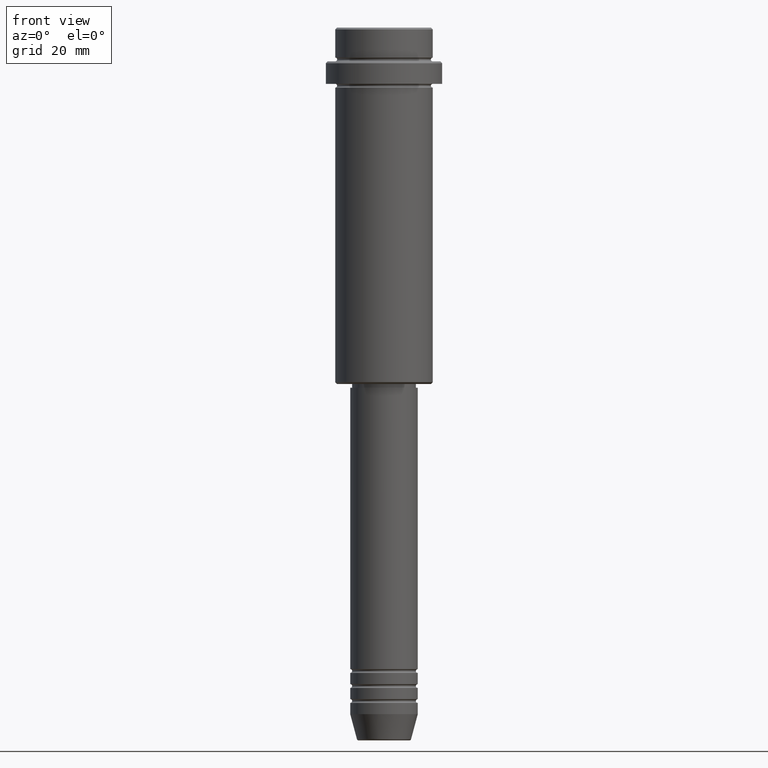
[diagram: clean part render]
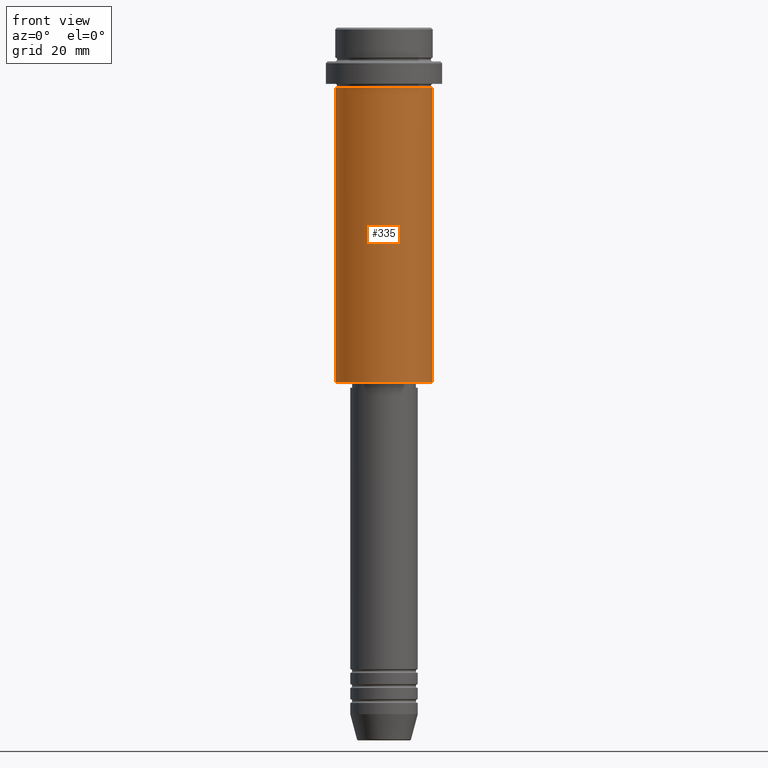
[diagram: same view with one face highlighted and labeled with its STEP entity id]
A machine part, front view. The second image highlights one B-rep face of the part: STEP entity #335.
In plain terms, the highlighted cylindrical surface (partial cylindrical patch) has radius 13 mm, axis along (-0, -0, 1).
Its self-contained STEP definition (entity closure, byte-faithful):
#56 = EDGE_CURVE ( 'NONE', #548, #387, #756, .T. ) ;
#60 = DIRECTION ( 'NONE',  ( -1.000000000000000000, 0.000000000000000000, 0.000000000000000000 ) ) ;
#63 = DIRECTION ( 'NONE',  ( -0.000000000000000000, -0.000000000000000000, 1.000000000000000000 ) ) ;
#83 = LINE ( 'NONE', #88, #286 ) ;
#88 = CARTESIAN_POINT ( 'NONE',  ( -13.00000000000000000, 1.592040838891559095E-15, 0.000000000000000000 ) ) ;
#133 = VERTEX_POINT ( 'NONE', #332 ) ;
#142 = VECTOR ( 'NONE', #348, 1000.000000000000000 ) ;
#152 = ORIENTED_EDGE ( 'NONE', *, *, #56, .F. ) ;
#153 = CARTESIAN_POINT ( 'NONE',  ( 0.000000000000000000, 0.000000000000000000, -94.49999999999997158 ) ) ;
#160 = CYLINDRICAL_SURFACE ( 'NONE', #895, 13.00000000000000000 ) ;
#195 = FACE_OUTER_BOUND ( 'NONE', #690, .T. ) ;
#226 = DIRECTION ( 'NONE',  ( 1.000000000000000000, 0.000000000000000000, 0.000000000000000000 ) ) ;
#286 = VECTOR ( 'NONE', #637, 1000.000000000000000 ) ;
#296 = CARTESIAN_POINT ( 'NONE',  ( 0.000000000000000000, 0.000000000000000000, 0.000000000000000000 ) ) ;
#324 = ORIENTED_EDGE ( 'NONE', *, *, #589, .T. ) ;
#332 = CARTESIAN_POINT ( 'NONE',  ( 13.00000000000000000, 0.000000000000000000, -94.49999999999997158 ) ) ;
#335 = ADVANCED_FACE ( 'NONE', ( #195 ), #160, .T. ) ;
#348 = DIRECTION ( 'NONE',  ( -0.000000000000000000, -0.000000000000000000, 1.000000000000000000 ) ) ;
#364 = CARTESIAN_POINT ( 'NONE',  ( 13.00000000000000000, 0.000000000000000000, 0.000000000000000000 ) ) ;
#387 = VERTEX_POINT ( 'NONE', #935 ) ;
#520 = DIRECTION ( 'NONE',  ( -0.000000000000000000, -0.000000000000000000, 1.000000000000000000 ) ) ;
#548 = VERTEX_POINT ( 'NONE', #1216 ) ;
#589 = EDGE_CURVE ( 'NONE', #133, #387, #1004, .T. ) ;
#599 = ORIENTED_EDGE ( 'NONE', *, *, #900, .F. ) ;
#614 = DIRECTION ( 'NONE',  ( -0.000000000000000000, -0.000000000000000000, 1.000000000000000000 ) ) ;
#620 = CARTESIAN_POINT ( 'NONE',  ( -13.00000000000000000, 1.592040838891559095E-15, -94.49999999999997158 ) ) ;
#637 = DIRECTION ( 'NONE',  ( -0.000000000000000000, -0.000000000000000000, 1.000000000000000000 ) ) ;
#690 = EDGE_LOOP ( 'NONE', ( #599, #1212, #324, #152 ) ) ;
#708 = VERTEX_POINT ( 'NONE', #620 ) ;
#713 = EDGE_CURVE ( 'NONE', #708, #133, #782, .T. ) ;
#734 = DIRECTION ( 'NONE',  ( 1.000000000000000000, 0.000000000000000000, 0.000000000000000000 ) ) ;
#756 = CIRCLE ( 'NONE', #1150, 13.00000000000000000 ) ;
#782 = CIRCLE ( 'NONE', #922, 13.00000000000000000 ) ;
#895 = AXIS2_PLACEMENT_3D ( 'NONE', #296, #63, #734 ) ;
#900 = EDGE_CURVE ( 'NONE', #708, #548, #83, .T. ) ;
#922 = AXIS2_PLACEMENT_3D ( 'NONE', #153, #614, #60 ) ;
#935 = CARTESIAN_POINT ( 'NONE',  ( 13.00000000000000000, 0.000000000000000000, -16.00000000000000000 ) ) ;
#1004 = LINE ( 'NONE', #364, #142 ) ;
#1150 = AXIS2_PLACEMENT_3D ( 'NONE', #1413, #520, #226 ) ;
#1212 = ORIENTED_EDGE ( 'NONE', *, *, #713, .T. ) ;
#1216 = CARTESIAN_POINT ( 'NONE',  ( -13.00000000000000000, 1.592040838891559095E-15, -16.00000000000000000 ) ) ;
#1413 = CARTESIAN_POINT ( 'NONE',  ( 0.000000000000000000, 0.000000000000000000, -16.00000000000000000 ) ) ;